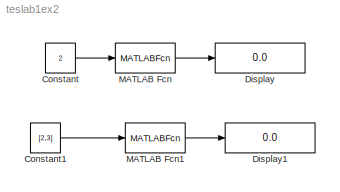
MODEL teslab1ex2
KIND model
BLOCK [Constant] Constant
  OutDataType = sfix(16)
  OutScaling = 2^0
  Value = 2
BLOCK [Constant] Constant1
  ConRadixGroup = Best Precision: Vector-wise
  OutDataType = fixdt(1,16)
  Value = [2,3]
BLOCK [Display] Display
  Decimation = 1
  Lockdown = off
  Ports = [1]
BLOCK [Display] Display1
  Decimation = 1
  Lockdown = off
  Ports = [1]
BLOCK [MATLABFcn] MATLAB Fcn
  MATLABFcn = functief
  Ports = [1, 1]
BLOCK [MATLABFcn] MATLAB Fcn1
  MATLABFcn = functieg(1,2)
  Ports = [1, 1]
LINE Constant1:1 -> MATLAB Fcn1:1
LINE Constant:1 -> MATLAB Fcn:1
LINE MATLAB Fcn1:1 -> Display1:1
LINE MATLAB Fcn:1 -> Display:1
